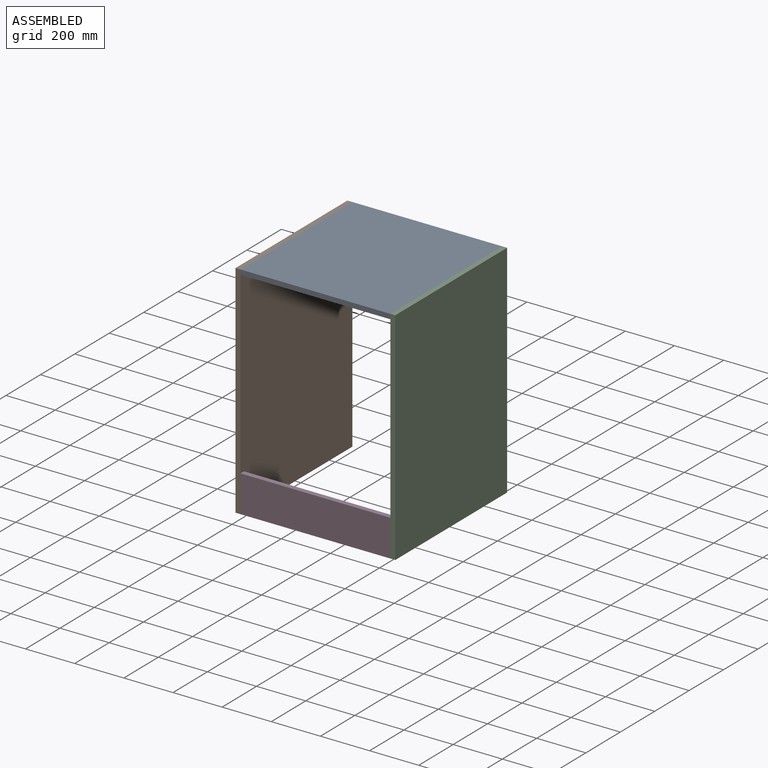
[diagram: assembled view]
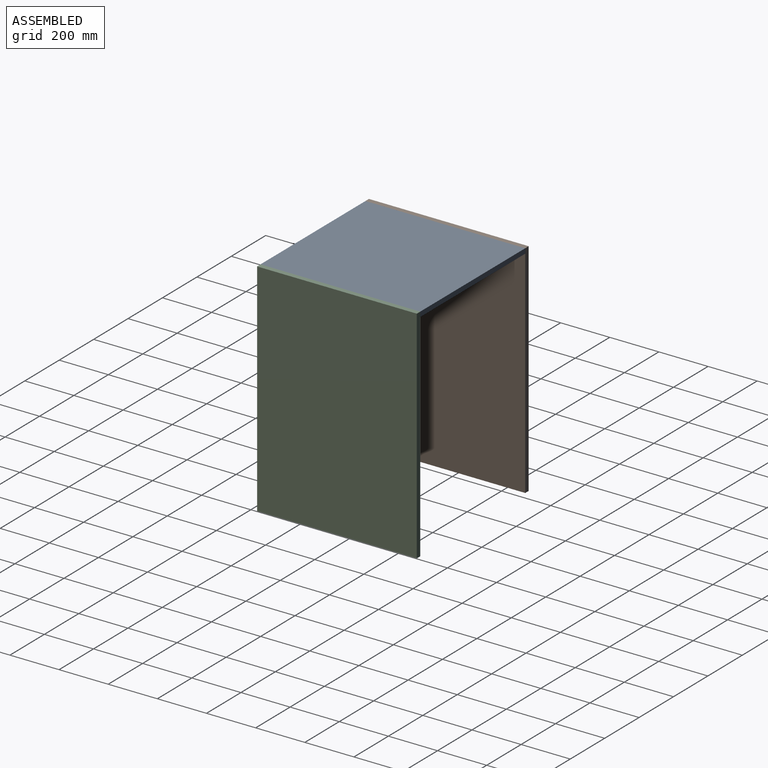
[diagram: assembled view, second angle]
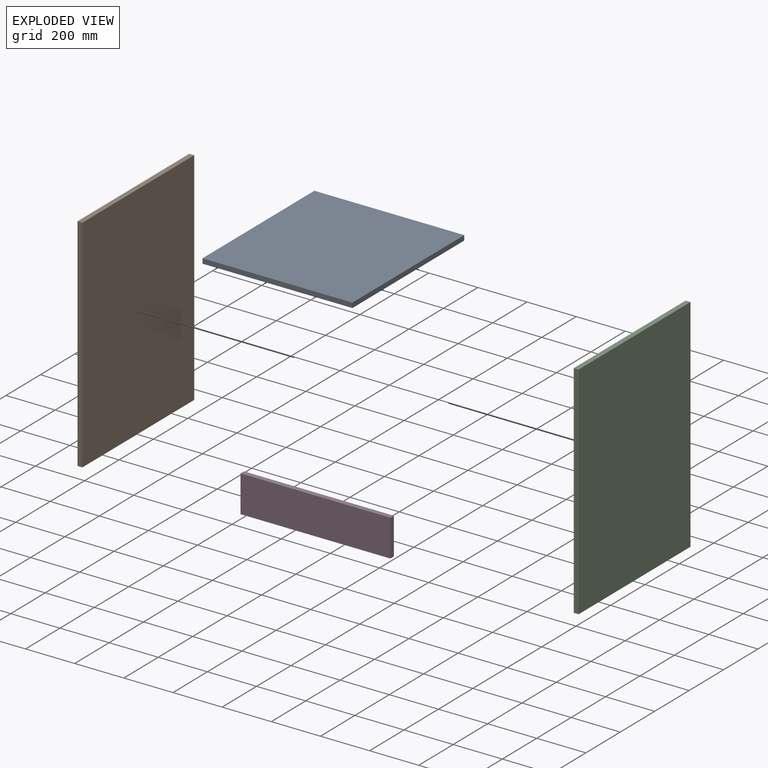
[diagram: exploded view]
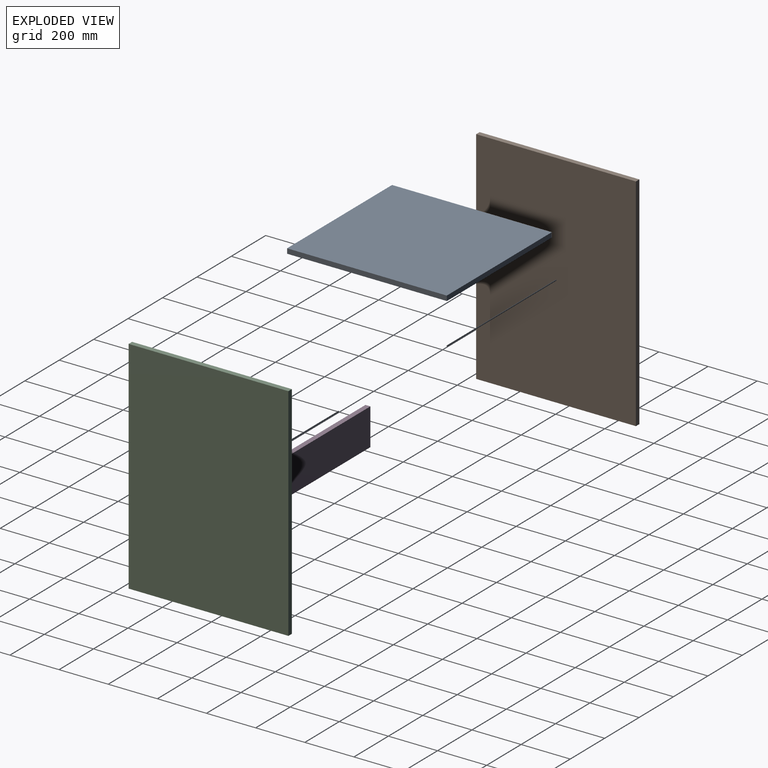
[diagram: exploded view, second angle]
ASSEMBLY  parts=4 mates=3
PART A: 6 faces, bbox 610x650x20 mm
  f0: plane 610x20mm, normal (0,1,0), area 12200mm2, adj f1,f3,f4,f5
  f1: plane 650x20mm, normal (-1,0,0), area 13000mm2, adj f0,f2,f4,f5
  f2: plane 610x20mm, normal (0,-1,0), area 12200mm2, adj f1,f3,f4,f5
  f3: plane 650x20mm, normal (1,0,0), area 13000mm2, adj f0,f2,f4,f5
  f4: plane 650x610mm, normal (0,0,1), area 396500mm2, adj f0,f1,f2,f3
  f5: plane 650x610mm, normal (0,0,-1), area 396500mm2, adj f0,f1,f2,f3
PART B: 6 faces, bbox 20x650x900 mm
  f0: plane 650x20mm, normal (0,0,1), area 13000mm2, adj f1,f3,f4,f5
  f1: plane 900x20mm, normal (0,-1,0), area 18000mm2, adj f0,f2,f4,f5
  f2: plane 650x20mm, normal (0,0,-1), area 13000mm2, adj f1,f3,f4,f5
  f3: plane 900x20mm, normal (0,1,0), area 18000mm2, adj f0,f2,f4,f5
  f4: plane 900x650mm, normal (1,0,0), area 585000mm2, adj f0,f1,f2,f3
  f5: plane 900x650mm, normal (-1,0,0), area 585000mm2, adj f0,f1,f2,f3
PART C: same geometry as B
PART D: 6 faces, bbox 610x20x150 mm
  f0: plane 610x20mm, normal (0,0,1), area 12200mm2, adj f1,f3,f4,f5
  f1: plane 150x20mm, normal (-1,0,0), area 3000mm2, adj f0,f2,f4,f5
  f2: plane 610x20mm, normal (0,0,-1), area 12200mm2, adj f1,f3,f4,f5
  f3: plane 150x20mm, normal (1,0,0), area 3000mm2, adj f0,f2,f4,f5
  f4: plane 610x150mm, normal (0,-1,0), area 91500mm2, adj f0,f1,f2,f3
  f5: plane 610x150mm, normal (0,1,0), area 91500mm2, adj f0,f1,f2,f3
PLACE A t=(-273.79,-2.59,233.23)mm
PLACE B t=(-618.79,-52.59,-196.77)mm
PLACE C t=(11.21,-52.59,-196.77)mm
PLACE D t=(-426.75,-332.59,-418.21)mm
MATE fastened B.f4 <-> A.f1  axis (1,0,0) through (-598.79,-27.59,253.23)mm
MATE fastened D.f3 <-> C.f5  axis (1,0,0) through (11.21,-352.59,-646.77)mm
MATE fastened C.f5 <-> A.f3  axis (-1,0,0) through (11.21,-27.59,253.23)mm
